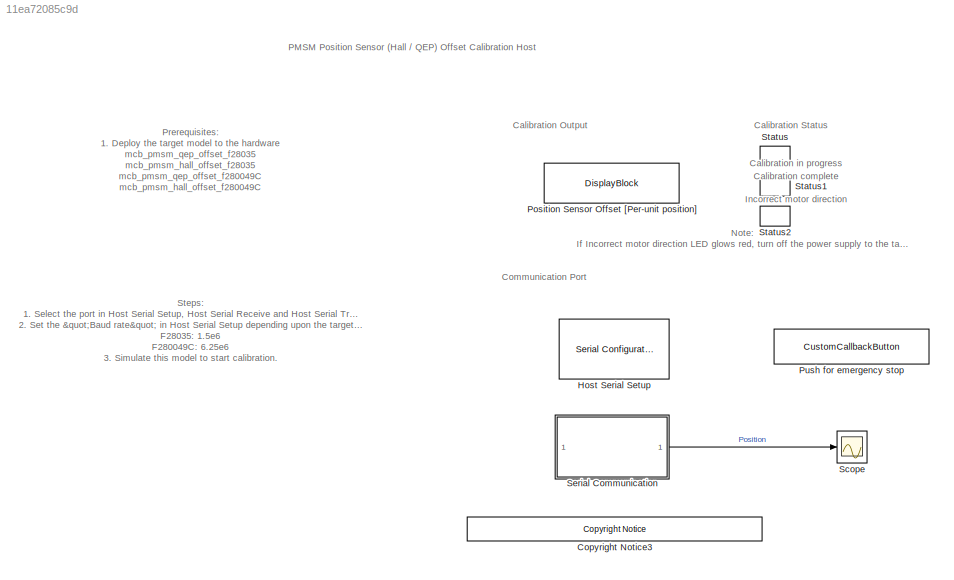
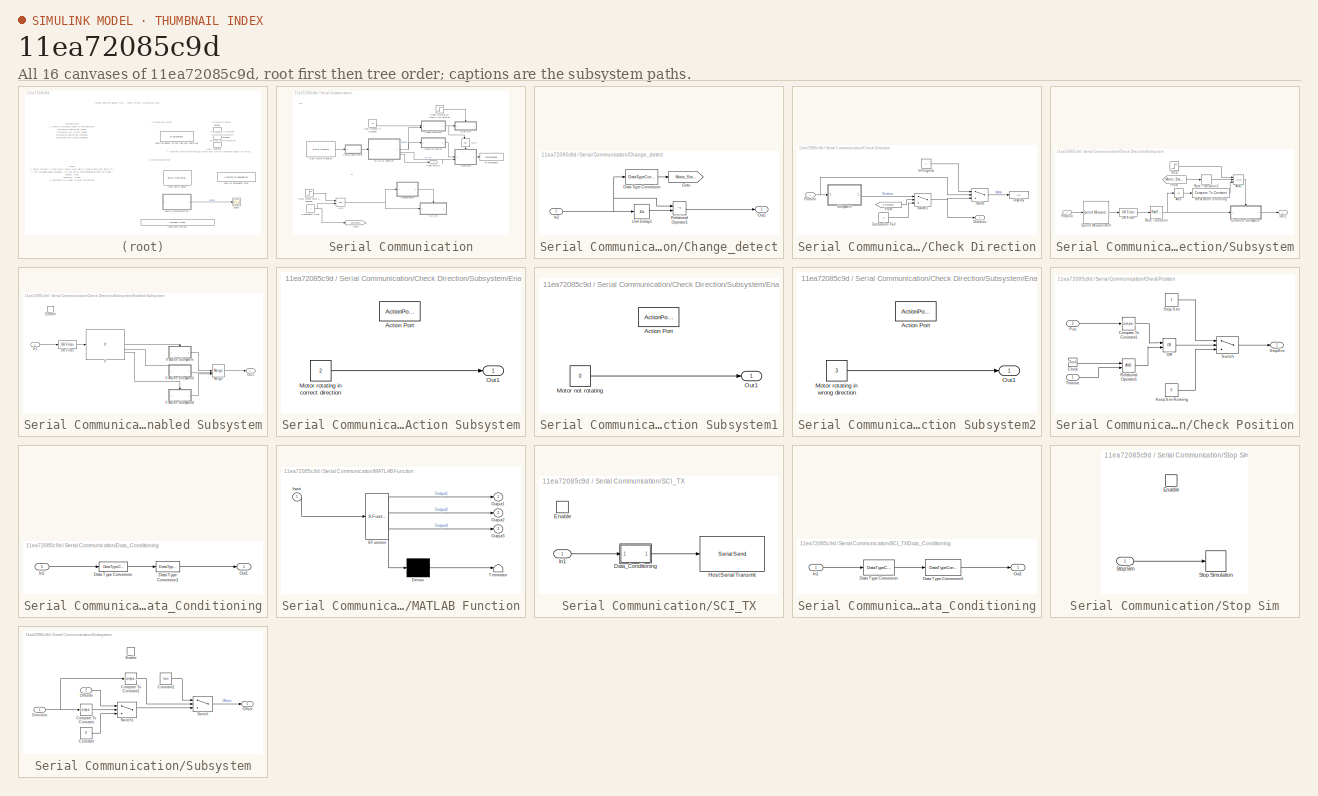
[diagram: thumbnail index - all 16 canvases of the model, root first then tree order]
MODEL slx_11ea72085c9d
KIND model
CONFIG AbsTol = auto
CONFIG EnableMultiTasking = on
CONFIG FixedStep = auto
CONFIG MaxStep = auto
CONFIG MinStep = auto
CONFIG RelTol = 1e-3
CONFIG SampleTimeConstraint = Unconstrained
CONFIG SolverName = FixedStepDiscrete
CONFIG StartFcn = set_param([bdroot '/Serial Communication/Emergency Stop'], 'Value', '1');
CONFIG StartTime = 0.0
CONFIG StopTime = inf
BLOCK [Reference] <copyright redacted>
  SourceBlock = demo_controls/<copyright redacted>
  SourceType = <copyright redacted>
BLOCK [Reference] Host Serial Setup  REF=instrumentseriallib/Serial Configuration
  Priority = -99
  SourceBlock = instrumentseriallib/Serial Configuration
  SourceType = system.SerialConfiguration
BLOCK [DisplayBlock] Position Sensor Offset [Per-unit position]
  GridColor = [0.0, 0.0, 1.0]
  LabelPosition = Hide
  Transparency = 1
BLOCK [CustomCallbackButton] Push for emergency stop
  Configuration = {"components":[{"name":"BackgroundImageComponent","settings":{"image":{"size":[0,0],"src":"default","srcOrientation":"Right"},"position":[0,0,1,1]}},{"name":"ButtonStateComponent","settings":{"buttonType":"momentary","clickFcn":"set_param([bdroot '\/Serial Communication\/Emergency Stop'], 'Value', '0');","onValue":1,"position":[0,0,1,1],"pressDelay":"500","pressFcn":"","repeatInterval":"0","states...<+1858ch>
  CustomBackgroundColor = {"color":[0.9568627451,0.9568627451,0.9568627451],"show":true}
BLOCK [Scope] Scope
  ActiveDisplayYMaximum = 0.125
  ActiveDisplayYMinimum = -1.125
  Floating = off
  FrameBasedProcessingString = Columns as channels (frame based)
  GraphicalSettings = {"GraphicalSettings":{"LegacySettings":true,"Style":{"AxesScalingProperties":{"ScaleAxesLimitsAtStop":false},"Style":{"AxesColor":"[0 0 0]","ChannelNames":[""],"ColorOrder":"[1 1 0.0666666666666667;0.0745098039215686 0.623529411764706 1;1 0.411764705882353 0.16078431372549;0.392156862745098 0.831372549019608 0.0745098039215686;0.717647058823529 0.274509803921569 1;0.0588235294117647 1 1;1 0.074509...<+874ch>
  MultipleDisplayCache = [{"MaxYLimMag":1.125,"MaxYLimReal":0.125,"MinYLimMag":0,"MinYLimReal":-1.125,"PlotAsMagnitudePhase":false,"ShowGrid":true,"ShowLegend":false,"Title":"Position","YLabel":"Position (Per Unit)"}]
  NumInputPorts = 1
  OpenAtSimulationStart = on
  Title = Position
  WasSavedAsWebScope = on
  WindowPosition = [775 307 498 539]
  YLabel = Position (Per Unit)
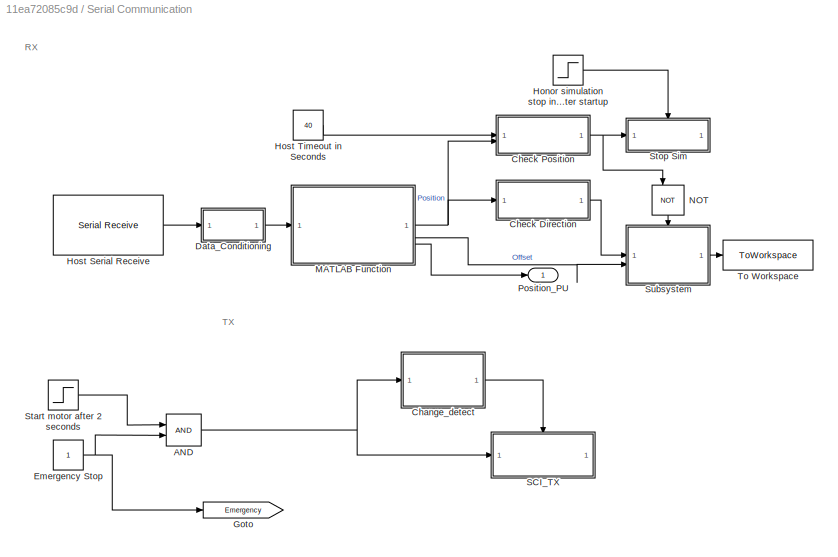
BLOCK [SubSystem] Serial Communication
BLOCK [Logic] Serial Communication/AND
  AllPortsSameDT = off
  IconShape = distinctive
  OutDataTypeStr = boolean
BLOCK [SubSystem] Serial Communication/Change_detect
BLOCK [DataTypeConversion] Serial Communication/Change_detect/Data Type Conversion
  OutDataTypeStr = boolean
  RndMeth = Simplest
  SaturateOnIntegerOverflow = off
BLOCK [Goto] Serial Communication/Change_detect/Goto
  GotoTag = Motor_State
  TagVisibility = global
BLOCK [Inport] Serial Communication/Change_detect/In2
BLOCK [Outport] Serial Communication/Change_detect/Out1
  VectorParamsAs1DForOutWhenUnconnected = off
BLOCK [RelationalOperator] Serial Communication/Change_detect/Relational Operator1
  InputSameDT = off
  Operator = ~=
  OutDataTypeStr = boolean
BLOCK [UnitDelay] Serial Communication/Change_detect/Unit Delay1
  HasFrameUpgradeWarning = on
  SampleTime = -1
BLOCK [SubSystem] Serial Communication/Check Direction
BLOCK [Constant] Serial Communication/Check Direction/Calibration Fail
  OutDataTypeStr = uint16
  Value = 3
BLOCK [Outport] Serial Communication/Check Direction/Direction
BLOCK [Display] Serial Communication/Check Direction/Display
  Decimation = 1
BLOCK [From] Serial Communication/Check Direction/From
  GotoTag = Emergency
  TagVisibility = global
BLOCK [Constant] Serial Communication/Check Direction/InProgress
  OutDataTypeStr = uint16
BLOCK [Inport] Serial Communication/Check Direction/Position
BLOCK [SubSystem] Serial Communication/Check Direction/Subsystem
BLOCK [Logic] Serial Communication/Check Direction/Subsystem/AND
  AllPortsSameDT = off
  IconShape = distinctive
  Inputs = 3
  OutDataTypeStr = boolean
BLOCK [Abs] Serial Communication/Check Direction/Subsystem/Abs
  SaturateOnIntegerOverflow = off
BLOCK [SubSystem] Serial Communication/Check Direction/Subsystem/Enabled Subsystem
  TreatAsAtomicUnit = on
BLOCK [EnablePort] Serial Communication/Check Direction/Subsystem/Enabled Subsystem/Enable
BLOCK [Reference] Serial Communication/Check Direction/Subsystem/Enabled Subsystem/IIR Filter  REF=mcbcontrolslib/IIR Filter
  SourceBlock = mcbcontrolslib/IIR Filter
  SourceType = IIR Filter
BLOCK [If] Serial Communication/Check Direction/Subsystem/Enabled Subsystem/If
  ElseIfExpressions = u1 > single(-0.1)
  IfExpression = u1 > single(0.1)
BLOCK [SubSystem] Serial Communication/Check Direction/Subsystem/Enabled Subsystem/If Action Subsystem
  TreatAsAtomicUnit = on
BLOCK [ActionPort] Serial Communication/Check Direction/Subsystem/Enabled Subsystem/If Action Subsystem/Action Port
  ActionPortLabel = if(u1 > single(0.1))
BLOCK [Constant] Serial Communication/Check Direction/Subsystem/Enabled Subsystem/If Action Subsystem/Motor rotating in correct direction
  OutDataTypeStr = uint16
  Value = 2
BLOCK [Outport] Serial Communication/Check Direction/Subsystem/Enabled Subsystem/If Action Subsystem/Out1
BLOCK [SubSystem] Serial Communication/Check Direction/Subsystem/Enabled Subsystem/If Action Subsystem1
  TreatAsAtomicUnit = on
BLOCK [ActionPort] Serial Communication/Check Direction/Subsystem/Enabled Subsystem/If Action Subsystem1/Action Port
  ActionPortLabel = elseif(u1 > single(-0.1))
BLOCK [Constant] Serial Communication/Check Direction/Subsystem/Enabled Subsystem/If Action Subsystem1/Motor not rotating
  OutDataTypeStr = uint16
  Value = 0
BLOCK [Outport] Serial Communication/Check Direction/Subsystem/Enabled Subsystem/If Action Subsystem1/Out1
BLOCK [SubSystem] Serial Communication/Check Direction/Subsystem/Enabled Subsystem/If Action Subsystem2
  TreatAsAtomicUnit = on
BLOCK [ActionPort] Serial Communication/Check Direction/Subsystem/Enabled Subsystem/If Action Subsystem2/Action Port
  ActionPortLabel = else
BLOCK [Constant] Serial Communication/Check Direction/Subsystem/Enabled Subsystem/If Action Subsystem2/Motor rotating in wrong direction
  OutDataTypeStr = uint16
  Value = 3
BLOCK [Outport] Serial Communication/Check Direction/Subsystem/Enabled Subsystem/If Action Subsystem2/Out1
BLOCK [Inport] Serial Communication/Check Direction/Subsystem/Enabled Subsystem/In1
BLOCK [Merge] Serial Communication/Check Direction/Subsystem/Enabled Subsystem/Merge
  Inputs = 3
BLOCK [Outport] Serial Communication/Check Direction/Subsystem/Enabled Subsystem/Out1
BLOCK [From] Serial Communication/Check Direction/Subsystem/From
  GotoTag = Motor_State
  TagVisibility = global
BLOCK [Reference] Serial Communication/Check Direction/Subsystem/IIR Filter  REF=mcbcontrolslib/IIR Filter
  SourceBlock = mcbcontrolslib/IIR Filter
  SourceType = IIR Filter
BLOCK [Outport] Serial Communication/Check Direction/Subsystem/Out1
BLOCK [Inport] Serial Communication/Check Direction/Subsystem/Position
BLOCK [RateTransition] Serial Communication/Check Direction/Subsystem/Rate Transition
BLOCK [RateTransition] Serial Communication/Check Direction/Subsystem/Rate Transition1
BLOCK [Reference] Serial Communication/Check Direction/Subsystem/Speed Measurement  REF=mcbpositiondecoderlib/Speed Measurement
  SourceBlock = mcbpositiondecoderlib/Speed Measurement
  SourceType = Speed Measurement
BLOCK [Step] Serial Communication/Check Direction/Subsystem/Step
  SampleTime = 600*Ts
  Time = 5
BLOCK [Reference] Serial Communication/Check Direction/Subsystem/check motor is running  REF=simulink/Logic and Bit
Operations/Compare
To Constant
  SourceBlock = simulink/Logic and Bit\nOperations/Compare\nTo Constant
  SourceType = Compare To Constant
BLOCK [Switch] Serial Communication/Check Direction/Switch
  Criteria = u2 > Threshold
  InputSameDT = off
  SaturateOnIntegerOverflow = off
BLOCK [Switch] Serial Communication/Check Direction/Switch1
  Criteria = u2 > Threshold
  InputSameDT = off
  SaturateOnIntegerOverflow = off
BLOCK [SubSystem] Serial Communication/Check Position
BLOCK [Clock] Serial Communication/Check Position/Clock
BLOCK [Reference] Serial Communication/Check Position/Compare To Constant1  REF=simulink/Logic and Bit
Operations/Compare
To Constant
  SourceBlock = simulink/Logic and Bit\nOperations/Compare\nTo Constant
  SourceType = Compare To Constant
BLOCK [Constant] Serial Communication/Check Position/Keep Sim Running
  OutDataTypeStr = Inherit: Inherit via back propagation
  Value = 0
BLOCK [Logic] Serial Communication/Check Position/OR
  AllPortsSameDT = off
  IconShape = distinctive
  Operator = OR
  OutDataTypeStr = boolean
BLOCK [Inport] Serial Communication/Check Position/Pos
  Port = 2
BLOCK [RelationalOperator] Serial Communication/Check Position/Relational Operator1
  InputSameDT = off
  OutDataTypeStr = boolean
  RndMeth = Simplest
BLOCK [Constant] Serial Communication/Check Position/Stop Sim
  OutDataTypeStr = Inherit: Inherit via back propagation
BLOCK [Outport] Serial Communication/Check Position/StopSim
BLOCK [Switch] Serial Communication/Check Position/Switch
  Criteria = u2 > Threshold
  InputSameDT = off
  SaturateOnIntegerOverflow = off
  Threshold = 0.5
BLOCK [Inport] Serial Communication/Check Position/Timeout
BLOCK [SubSystem] Serial Communication/Data_Conditioning
BLOCK [DataTypeConversion] Serial Communication/Data_Conditioning/Data Type Conversion
  ConvertRealWorld = Stored Integer (SI)
  OutDataTypeStr = fixdt(1,16,12)
  RndMeth = Simplest
  SaturateOnIntegerOverflow = off
BLOCK [DataTypeConversion] Serial Communication/Data_Conditioning/Data Type Conversion1
  OutDataTypeStr = single
  RndMeth = Floor
  SaturateOnIntegerOverflow = off
BLOCK [Inport] Serial Communication/Data_Conditioning/In1
BLOCK [Outport] Serial Communication/Data_Conditioning/Out1
  VectorParamsAs1DForOutWhenUnconnected = off
BLOCK [Constant] Serial Communication/Emergency Stop
  OutDataTypeStr = Inherit: Inherit via back propagation
BLOCK [Goto] Serial Communication/Goto
  GotoTag = Emergency
  TagVisibility = global
BLOCK [Step] Serial Communication/Honor simulation stop input 5 seconds after startup
  SampleTime = 600*Ts
  Time = 5
BLOCK [Reference] Serial Communication/Host Serial Receive  REF=instrumentseriallib/Serial Receive
  SourceBlock = instrumentseriallib/Serial Receive
  SourceType = system.SerialReceive
BLOCK [Constant] Serial Communication/Host Timeout in Seconds
  OutDataTypeStr = Inherit: Inherit via back propagation
  Value = 40
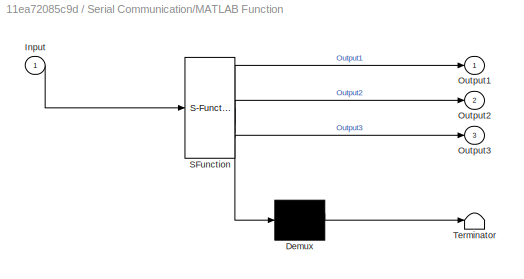
BLOCK [SubSystem] Serial Communication/MATLAB Function
  ErrorFcn = Stateflow.Translate.translate
  PermitHierarchicalResolution = ExplicitOnly
  SFBlockType = MATLAB Function
  TreatAsAtomicUnit = on
BLOCK [Demux] Serial Communication/MATLAB Function/ Demux 
  Outputs = 1
BLOCK [S-Function] Serial Communication/MATLAB Function/ SFunction 
  EnableBusSupport = off
  FunctionName = sf_sfun
  PortCounts = [1 4]
  SFcnIsStateOwnerBlock = off
  SFunctionDeploymentMode = off
  Tag = Stateflow S-Function 3
BLOCK [Terminator] Serial Communication/MATLAB Function/ Terminator 
BLOCK [Inport] Serial Communication/MATLAB Function/Input
BLOCK [Outport] Serial Communication/MATLAB Function/Output1
BLOCK [Outport] Serial Communication/MATLAB Function/Output2
  Port = 2
BLOCK [Outport] Serial Communication/MATLAB Function/Output3
  Port = 3
BLOCK [Logic] Serial Communication/NOT
  AllPortsSameDT = off
  IconShape = distinctive
  NameLocation = left
  Operator = NOT
  OutDataTypeStr = boolean
BLOCK [Outport] Serial Communication/Position_PU
BLOCK [SubSystem] Serial Communication/SCI_TX
  TreatAsAtomicUnit = on
BLOCK [SubSystem] Serial Communication/SCI_TX/Data_Conditioning
BLOCK [DataTypeConversion] Serial Communication/SCI_TX/Data_Conditioning/Data Type Conversion
  OutDataTypeStr = uint16
  RndMeth = Simplest
  SaturateOnIntegerOverflow = off
BLOCK [DataTypeConversion] Serial Communication/SCI_TX/Data_Conditioning/Data Type Conversion3
  ConvertRealWorld = Stored Integer (SI)
  OutDataTypeStr = uint32
  RndMeth = Simplest
  SaturateOnIntegerOverflow = off
BLOCK [Inport] Serial Communication/SCI_TX/Data_Conditioning/In1
BLOCK [Outport] Serial Communication/SCI_TX/Data_Conditioning/Out1
  VectorParamsAs1DForOutWhenUnconnected = off
BLOCK [EnablePort] Serial Communication/SCI_TX/Enable
BLOCK [Reference] Serial Communication/SCI_TX/Host Serial Transmit  REF=instrumentseriallib/Serial Send
  SourceBlock = instrumentseriallib/Serial Send
  SourceType = system.SerialSend
BLOCK [Inport] Serial Communication/SCI_TX/In1
BLOCK [Step] Serial Communication/Start motor after 2 seconds
  OutDataTypeStr = single
  SampleTime = Ts*600
  Time = 2
BLOCK [SubSystem] Serial Communication/Stop Sim
BLOCK [EnablePort] Serial Communication/Stop Sim/Enable
BLOCK [Stop] Serial Communication/Stop Sim/Stop Simulation
BLOCK [Inport] Serial Communication/Stop Sim/StopSim
BLOCK [SubSystem] Serial Communication/Subsystem
BLOCK [Reference] Serial Communication/Subsystem/Compare To Constant  REF=simulink/Logic and Bit
Operations/Compare
To Constant
  SourceBlock = simulink/Logic and Bit\nOperations/Compare\nTo Constant
  SourceType = Compare To Constant
BLOCK [Reference] Serial Communication/Subsystem/Compare To Constant1  REF=simulink/Logic and Bit
Operations/Compare
To Constant
  SourceBlock = simulink/Logic and Bit\nOperations/Compare\nTo Constant
  SourceType = Compare To Constant
BLOCK [Constant] Serial Communication/Subsystem/Constant
  OutDataTypeStr = Inherit: Inherit via back propagation
  Value = 0
BLOCK [Constant] Serial Communication/Subsystem/Constant1
  OutDataTypeStr = Inherit: Inherit via back propagation
  Value = nan
BLOCK [Inport] Serial Communication/Subsystem/Direction
BLOCK [EnablePort] Serial Communication/Subsystem/Enable
BLOCK [Outport] Serial Communication/Subsystem/Offset
BLOCK [Inport] Serial Communication/Subsystem/OffsetIn
  Port = 2
BLOCK [Switch] Serial Communication/Subsystem/Switch
  Criteria = u2 > Threshold
  InputSameDT = off
  SaturateOnIntegerOverflow = off
BLOCK [Switch] Serial Communication/Subsystem/Switch1
  Criteria = u2 > Threshold
  InputSameDT = off
  SaturateOnIntegerOverflow = off
BLOCK [ToWorkspace] Serial Communication/To Workspace
  MaxDataPoints = 1
  SampleTime = -1
  Save2DSignal = 2-D array (concatenate along first dimension)
  VariableName = PositionOffset
BLOCK [LampBlock] Status
  DefaultColor = [192.0, 192.0, 192.0]
  LabelPosition = Hide
BLOCK [LampBlock] Status1
  DefaultColor = [192.0, 192.0, 192.0]
  LabelPosition = Hide
BLOCK [LampBlock] Status2
  DefaultColor = [192.0, 192.0, 192.0]
  LabelPosition = Hide
ANNOTATION (root): Calibration complete
ANNOTATION (root): Calibration in progress
ANNOTATION (root): Incorrect motor direction
ANNOTATION (root): Steps: 1. Select the port in Host Serial Setup , Host Serial Receive and Host Serial Transmit . 2. Set the "Baud rate" in Host Serial Setup depending upon the target used as below: F28035: 1.5e6 F280049C: 6.25e6 3. Simulate this model to start calibration. Motor starts running when calibration begins 4. After calibration completes, simulation ends and motor stops automatically. 5. Push the Emergen...<+56ch>
ANNOTATION (root): Note: If Incorrect motor direction LED glows red , turn off the power supply to the target, interchange any two motor phase connections, and simulate the host model again.
ANNOTATION (root): Prerequisites: 1. Deploy the target model to the hardware mcb_pmsm_qep_offset_f28035 mcb_pmsm_hall_offset_f28035 mcb_pmsm_qep_offset_f280049C mcb_pmsm_hall_offset_f280049C 2.You should see and verify the variables from the target model in the base workspace.
ANNOTATION (root): Calibration Output
ANNOTATION (root): Calibration Status
ANNOTATION (root): Communication Port
ANNOTATION (root): PMSM Position Sensor (Hall / QEP) Offset Calibration Host
ANNOTATION Serial Communication: RX
ANNOTATION Serial Communication: TX
NET Serial Communication/AND:1 -> Serial Communication/Change_detect:1, Serial Communication/SCI_TX:1
LINE Serial Communication/Change_detect/Data Type Conversion:1 -> Serial Communication/Change_detect/Goto:1
NET Serial Communication/Change_detect/In2:1 -> Serial Communication/Change_detect/Data Type Conversion:1, Serial Communication/Change_detect/Relational Operator1:1, Serial Communication/Change_detect/Unit Delay1:1
LINE Serial Communication/Change_detect/Relational Operator1:1 -> Serial Communication/Change_detect/Out1:1
LINE Serial Communication/Change_detect/Unit Delay1:1 -> Serial Communication/Change_detect/Relational Operator1:2
LINE Serial Communication/Change_detect:1 -> Serial Communication/SCI_TX:enable
LINE Serial Communication/Check Direction/Calibration Fail:1 -> Serial Communication/Check Direction/Switch1:3
LINE Serial Communication/Check Direction/From:1 -> Serial Communication/Check Direction/Switch1:2
LINE Serial Communication/Check Direction/InProgress:1 -> Serial Communication/Check Direction/Switch:1
NET Serial Communication/Check Direction/Position:1 -> Serial Communication/Check Direction/Subsystem:1, Serial Communication/Check Direction/Switch:2
LINE Serial Communication/Check Direction/Subsystem/AND:1 -> Serial Communication/Check Direction/Subsystem/Enabled Subsystem:enable
LINE Serial Communication/Check Direction/Subsystem/Abs:1 -> Serial Communication/Check Direction/Subsystem/check motor is running:1
LINE Serial Communication/Check Direction/Subsystem/Enabled Subsystem/IIR Filter:1 -> Serial Communication/Check Direction/Subsystem/Enabled Subsystem/If:1
LINE Serial Communication/Check Direction/Subsystem/Enabled Subsystem/If Action Subsystem/Motor rotating in correct direction:1 -> Serial Communication/Check Direction/Subsystem/Enabled Subsystem/If Action Subsystem/Out1:1
LINE Serial Communication/Check Direction/Subsystem/Enabled Subsystem/If Action Subsystem1/Motor not rotating:1 -> Serial Communication/Check Direction/Subsystem/Enabled Subsystem/If Action Subsystem1/Out1:1
LINE Serial Communication/Check Direction/Subsystem/Enabled Subsystem/If Action Subsystem1:1 -> Serial Communication/Check Direction/Subsystem/Enabled Subsystem/Merge:2
LINE Serial Communication/Check Direction/Subsystem/Enabled Subsystem/If Action Subsystem2/Motor rotating in wrong direction:1 -> Serial Communication/Check Direction/Subsystem/Enabled Subsystem/If Action Subsystem2/Out1:1
LINE Serial Communication/Check Direction/Subsystem/Enabled Subsystem/If Action Subsystem2:1 -> Serial Communication/Check Direction/Subsystem/Enabled Subsystem/Merge:3
LINE Serial Communication/Check Direction/Subsystem/Enabled Subsystem/If Action Subsystem:1 -> Serial Communication/Check Direction/Subsystem/Enabled Subsystem/Merge:1
LINE Serial Communication/Check Direction/Subsystem/Enabled Subsystem/If:1 -> Serial Communication/Check Direction/Subsystem/Enabled Subsystem/If Action Subsystem:ifaction
LINE Serial Communication/Check Direction/Subsystem/Enabled Subsystem/If:2 -> Serial Communication/Check Direction/Subsystem/Enabled Subsystem/If Action Subsystem1:ifaction
LINE Serial Communication/Check Direction/Subsystem/Enabled Subsystem/If:3 -> Serial Communication/Check Direction/Subsystem/Enabled Subsystem/If Action Subsystem2:ifaction
LINE Serial Communication/Check Direction/Subsystem/Enabled Subsystem/In1:1 -> Serial Communication/Check Direction/Subsystem/Enabled Subsystem/IIR Filter:1
LINE Serial Communication/Check Direction/Subsystem/Enabled Subsystem/Merge:1 -> Serial Communication/Check Direction/Subsystem/Enabled Subsystem/Out1:1
LINE Serial Communication/Check Direction/Subsystem/Enabled Subsystem:1 -> Serial Communication/Check Direction/Subsystem/Out1:1
LINE Serial Communication/Check Direction/Subsystem/From:1 -> Serial Communication/Check Direction/Subsystem/Rate Transition1:1
LINE Serial Communication/Check Direction/Subsystem/IIR Filter:1 -> Serial Communication/Check Direction/Subsystem/Rate Transition:1
LINE Serial Communication/Check Direction/Subsystem/Position:1 -> Serial Communication/Check Direction/Subsystem/Speed Measurement:1
LINE Serial Communication/Check Direction/Subsystem/Rate Transition1:1 -> Serial Communication/Check Direction/Subsystem/AND:2
NET Serial Communication/Check Direction/Subsystem/Rate Transition:1 -> Serial Communication/Check Direction/Subsystem/Abs:1, Serial Communication/Check Direction/Subsystem/Enabled Subsystem:1
LINE Serial Communication/Check Direction/Subsystem/Speed Measurement:1 -> Serial Communication/Check Direction/Subsystem/IIR Filter:1
LINE Serial Communication/Check Direction/Subsystem/Step:1 -> Serial Communication/Check Direction/Subsystem/AND:1
LINE Serial Communication/Check Direction/Subsystem/check motor is running:1 -> Serial Communication/Check Direction/Subsystem/AND:3
LINE Serial Communication/Check Direction/Subsystem:1 -> Serial Communication/Check Direction/Switch1:1
NET Serial Communication/Check Direction/Switch1:1 -> Serial Communication/Check Direction/Direction:1, Serial Communication/Check Direction/Switch:3
LINE Serial Communication/Check Direction/Switch:1 -> Serial Communication/Check Direction/Display:1
LINE Serial Communication/Check Direction:1 -> Serial Communication/Subsystem:1
LINE Serial Communication/Check Position/Clock:1 -> Serial Communication/Check Position/Relational Operator1:1
LINE Serial Communication/Check Position/Compare To Constant1:1 -> Serial Communication/Check Position/OR:1
LINE Serial Communication/Check Position/Keep Sim Running:1 -> Serial Communication/Check Position/Switch:3
LINE Serial Communication/Check Position/OR:1 -> Serial Communication/Check Position/Switch:2
LINE Serial Communication/Check Position/Pos:1 -> Serial Communication/Check Position/Compare To Constant1:1
LINE Serial Communication/Check Position/Relational Operator1:1 -> Serial Communication/Check Position/OR:2
LINE Serial Communication/Check Position/Stop Sim:1 -> Serial Communication/Check Position/Switch:1
LINE Serial Communication/Check Position/Switch:1 -> Serial Communication/Check Position/StopSim:1
LINE Serial Communication/Check Position/Timeout:1 -> Serial Communication/Check Position/Relational Operator1:2
NET Serial Communication/Check Position:1 -> Serial Communication/NOT:1, Serial Communication/Stop Sim:1
LINE Serial Communication/Data_Conditioning/Data Type Conversion1:1 -> Serial Communication/Data_Conditioning/Out1:1
LINE Serial Communication/Data_Conditioning/Data Type Conversion:1 -> Serial Communication/Data_Conditioning/Data Type Conversion1:1
LINE Serial Communication/Data_Conditioning/In1:1 -> Serial Communication/Data_Conditioning/Data Type Conversion:1
LINE Serial Communication/Data_Conditioning:1 -> Serial Communication/MATLAB Function:1
NET Serial Communication/Emergency Stop:1 -> Serial Communication/AND:2, Serial Communication/Goto:1
LINE Serial Communication/Honor simulation stop input 5 seconds after startup:1 -> Serial Communication/Stop Sim:enable
LINE Serial Communication/Host Serial Receive:1 -> Serial Communication/Data_Conditioning:1
LINE Serial Communication/Host Timeout in Seconds:1 -> Serial Communication/Check Position:1
NET Serial Communication/MATLAB Function:1 -> Serial Communication/Check Direction:1, Serial Communication/Check Position:2
LINE Serial Communication/MATLAB Function:2 -> Serial Communication/Subsystem:2
LINE Serial Communication/MATLAB Function:3 -> Serial Communication/Position_PU:1
LINE Serial Communication/NOT:1 -> Serial Communication/Subsystem:enable
LINE Serial Communication/SCI_TX/Data_Conditioning/Data Type Conversion3:1 -> Serial Communication/SCI_TX/Data_Conditioning/Out1:1
LINE Serial Communication/SCI_TX/Data_Conditioning/Data Type Conversion:1 -> Serial Communication/SCI_TX/Data_Conditioning/Data Type Conversion3:1
LINE Serial Communication/SCI_TX/Data_Conditioning/In1:1 -> Serial Communication/SCI_TX/Data_Conditioning/Data Type Conversion:1
LINE Serial Communication/SCI_TX/Data_Conditioning:1 -> Serial Communication/SCI_TX/Host Serial Transmit:1
LINE Serial Communication/SCI_TX/In1:1 -> Serial Communication/SCI_TX/Data_Conditioning:1
LINE Serial Communication/Start motor after 2 seconds:1 -> Serial Communication/AND:1
LINE Serial Communication/Stop Sim/StopSim:1 -> Serial Communication/Stop Sim/Stop Simulation:1
LINE Serial Communication/Subsystem/Compare To Constant1:1 -> Serial Communication/Subsystem/Switch:2
LINE Serial Communication/Subsystem/Compare To Constant:1 -> Serial Communication/Subsystem/Switch1:2
LINE Serial Communication/Subsystem/Constant1:1 -> Serial Communication/Subsystem/Switch:1
LINE Serial Communication/Subsystem/Constant:1 -> Serial Communication/Subsystem/Switch1:3
NET Serial Communication/Subsystem/Direction:1 -> Serial Communication/Subsystem/Compare To Constant1:1, Serial Communication/Subsystem/Compare To Constant:1
LINE Serial Communication/Subsystem/OffsetIn:1 -> Serial Communication/Subsystem/Switch1:1
LINE Serial Communication/Subsystem/Switch1:1 -> Serial Communication/Subsystem/Switch:3
LINE Serial Communication/Subsystem/Switch:1 -> Serial Communication/Subsystem/Offset:1
LINE Serial Communication/Subsystem:1 -> Serial Communication/To Workspace:1
LINE Serial Communication:1 -> Scope:1
note: NET lines group one-source signal fan-out (src -> all destinations, sorted); 1:1 wires keep LINE
CHART Serial Communication/MATLAB Function states=1 transitions=1
  STATE_LABEL 'eML_blk_kernel()'
  STATE_LABEL 'SCRIPT:\nfunction [Output1, Output2, Output3] = unBuf(Input)\n\nselSignal= Input(:, 1);\nOutput1 = selSignal(1,1);\nselSignal = Input(:, 2);\nOutput2 = selSignal(1,1);\nOutput3 = Input(:,1);\nend'
CHART  states=0 transitions=0
